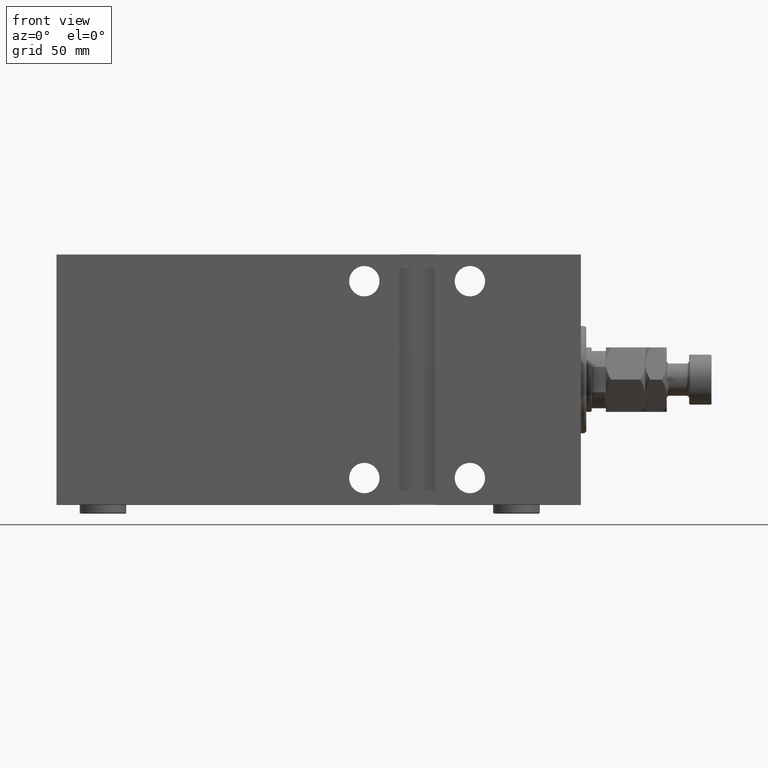
[diagram: clean part render]
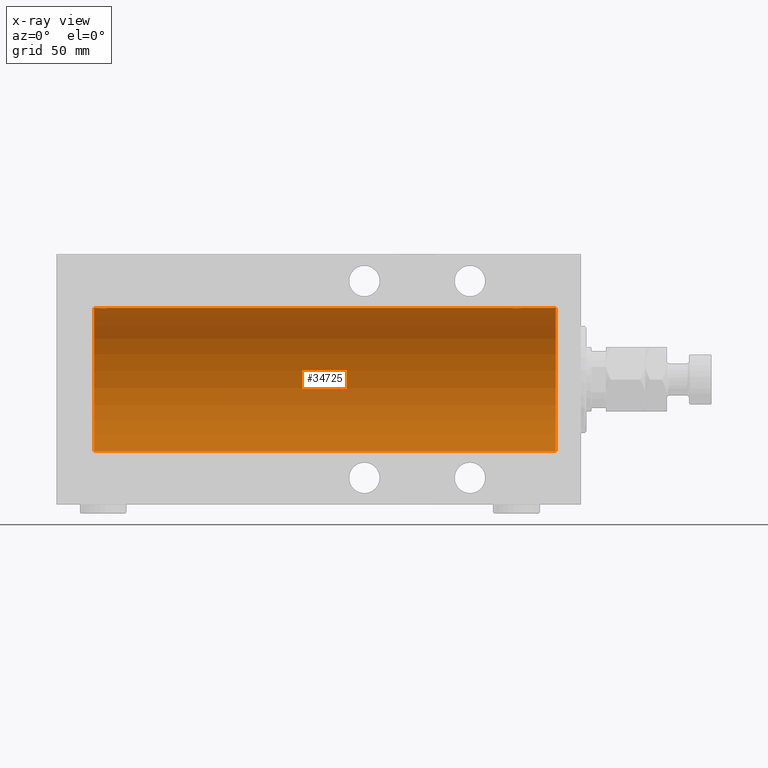
[diagram: x-ray — body ghosted, one internal face saturated and labeled with its STEP entity id]
A machine part, front view, then the same camera in x-ray: the body is ghosted and one INTERNAL B-rep face — a face not visible from any outside direction — is saturated and labeled: STEP entity #34725.
In plain terms, the highlighted cylindrical surface (partial cylindrical patch) has radius 40 mm, axis along (1, 0, -0).
Its self-contained STEP definition (entity closure, byte-faithful):
#127 = CARTESIAN_POINT ( 'NONE',  ( 33.61492399084646365, -1.830402106103518278, 39.95843610133494650 ) ) ;
#362 = CARTESIAN_POINT ( 'NONE',  ( 33.15334726986861824, -0.9668189122103377775, 39.98872185468385254 ) ) ;
#1238 = DIRECTION ( 'NONE',  ( 0.000000000000000000, 0.000000000000000000, 1.000000000000000000 ) ) ;
#1264 = CARTESIAN_POINT ( 'NONE',  ( 14.00000000000001243, 4.898587196589413026E-15, -40.00000000000000000 ) ) ;
#1785 = CARTESIAN_POINT ( 'NONE',  ( 267.9648932585351986, -2.847401743820455078, 39.89859630624608400 ) ) ;
#1987 = CARTESIAN_POINT ( 'NONE',  ( 38.69537007708436249, -1.331594428131636754, 39.97823692017208685 ) ) ;
#2236 = ORIENTED_EDGE ( 'NONE', *, *, #3599, .T. ) ;
#2241 = CARTESIAN_POINT ( 'NONE',  ( 264.0957482634864277, -0.7773146824711028025, 39.99291453282344833 ) ) ;
#2912 = CARTESIAN_POINT ( 'NONE',  ( 263.9999999999999432, -1.484439008399638965E-23, 40.00000000000000000 ) ) ;
#3599 = EDGE_CURVE ( 'NONE', #19220, #9148, #16643, .T. ) ;
#4024 = DIRECTION ( 'NONE',  ( -1.000000000000000000, -0.000000000000000000, -0.000000000000000000 ) ) ;
#4097 = CARTESIAN_POINT ( 'NONE',  ( 32.99999999999998579, -0.1957844162750551620, 40.00000000000000000 ) ) ;
#4730 = FACE_OUTER_BOUND ( 'NONE', #18650, .T. ) ;
#5015 = CARTESIAN_POINT ( 'NONE',  ( 37.82690184632410535, -2.387636253591812530, 39.92882473497732576 ) ) ;
#5279 = CARTESIAN_POINT ( 'NONE',  ( 265.4955691708652807, -2.602909538701760450, 39.91537030566259148 ) ) ;
#5481 = CARTESIAN_POINT ( 'NONE',  ( 39.00000000000000000, 1.790049141998953147E-15, 40.00000000000000000 ) ) ;
#5522 = CARTESIAN_POINT ( 'NONE',  ( 264.3956640008792078, -1.502129635934008167, 39.97212271185185983 ) ) ;
#5552 = CARTESIAN_POINT ( 'NONE',  ( 14.00000000000001243, 0.000000000000000000, 0.000000000000000000 ) ) ;
#5712 = CARTESIAN_POINT ( 'NONE',  ( 36.39109692509333627, -2.980812880639895468, 39.88879797994688658 ) ) ;
#5750 = CARTESIAN_POINT ( 'NONE',  ( 268.9813627951422177, -2.261082456166715104, 39.93628274425758917 ) ) ;
#7136 = DIRECTION ( 'NONE',  ( -1.000000000000000000, -0.000000000000000000, -0.000000000000000000 ) ) ;
#7574 = CARTESIAN_POINT ( 'NONE',  ( 33.73902383005258088, -1.981471132463167084, 39.95113231465138881 ) ) ;
#7803 = VECTOR ( 'NONE', #38650, 1000.000000000000000 ) ;
#7806 = CARTESIAN_POINT ( 'NONE',  ( 34.16955177177597847, -2.384933850258104560, 39.92898715513240404 ) ) ;
#7933 = CIRCLE ( 'NONE', #26543, 40.00000000000000000 ) ;
#8256 = CARTESIAN_POINT ( 'NONE',  ( 37.32853644746298016, -2.696981015661922054, 39.90904630908468675 ) ) ;
#8490 = CARTESIAN_POINT ( 'NONE',  ( 34.66775731134134730, -2.695129988695738721, 39.90917164320281074 ) ) ;
#8577 = CARTESIAN_POINT ( 'NONE',  ( 32.99999999999999289, -1.483413489222851649E-23, 40.00000000000000000 ) ) ;
#8598 = CARTESIAN_POINT ( 'NONE',  ( 272.0000000000000000, 4.898587196589413026E-15, -40.00000000000000000 ) ) ;
#8790 = DIRECTION ( 'NONE',  ( -1.000000000000000000, 0.000000000000000000, 0.000000000000000000 ) ) ;
#8878 = DIRECTION ( 'NONE',  ( 0.000000000000000000, 0.000000000000000000, 1.000000000000000000 ) ) ;
#9148 = VERTEX_POINT ( 'NONE', #18273 ) ;
#9222 = CARTESIAN_POINT ( 'NONE',  ( 267.7745567882632827, -2.904869018727210150, 39.89440043036668726 ) ) ;
#9296 = B_SPLINE_CURVE_WITH_KNOTS ( 'NONE', 3,
 ( #12941, #23213, #12700, #2241, #41145, #30657, #5522, #40909, #41836, #45332, #26940, #5279, #22972, #37192, #19481, #30894, #37668, #20170, #45114, #9222, #1785, #27177, #23446, #15989, #5750, #23897, #19949, #44878, #41383, #27405, #16672, #9456 ),
 .UNSPECIFIED., .F., .F.,
 ( 4, 2, 2, 2, 2, 2, 2, 2, 2, 2, 2, 2, 2, 2, 2, 4 ),
 ( 0.009382660366305065405, 0.009968941372944099474, 0.01055522237958313354, 0.01114150338622216761, 0.01172778439286120168, 0.01231406539950023575, 0.01290034640613926809, 0.01348662741277830215, 0.01407290841941733622, 0.01465918942605637029, 0.01524547043269540436, 0.01583175143933443843, 0.01641803244597347250, 0.01700431345261250657, 0.01759059445925154064, 0.01876315647252960878 ),
 .UNSPECIFIED. ) ;
#9329 = VERTEX_POINT ( 'NONE', #1264 ) ;
#9456 = CARTESIAN_POINT ( 'NONE',  ( 269.9999999999999432, 5.460299623278921719E-15, 40.00000000000000000 ) ) ;
#11228 = CARTESIAN_POINT ( 'NONE',  ( 272.0000000000000000, 0.000000000000000000, 40.00000000000000000 ) ) ;
#11466 = DIRECTION ( 'NONE',  ( -1.000000000000000000, -0.000000000000000000, -0.000000000000000000 ) ) ;
#12441 = CARTESIAN_POINT ( 'NONE',  ( 37.98136279514229585, -2.261082456166699561, 39.93628274425758917 ) ) ;
#12551 = EDGE_CURVE ( 'NONE', #19220, #35290, #18919, .T. ) ;
#12700 = CARTESIAN_POINT ( 'NONE',  ( 264.0189812288907660, -0.3904143323715981717, 39.99856256910221219 ) ) ;
#12941 = CARTESIAN_POINT ( 'NONE',  ( 263.9999999999999432, -1.484439008399638965E-23, 40.00000000000000000 ) ) ;
#13817 = VECTOR ( 'NONE', #7136, 1000.000000000000000 ) ;
#14789 = EDGE_CURVE ( 'NONE', #35511, #9148, #38437, .T. ) ;
#14794 = CARTESIAN_POINT ( 'NONE',  ( 33.01898122889073051, -0.3904143323715981717, 39.99856256910221219 ) ) ;
#15989 = CARTESIAN_POINT ( 'NONE',  ( 268.8269018463240627, -2.387636253591808977, 39.92882473497732576 ) ) ;
#16394 = CARTESIAN_POINT ( 'NONE',  ( 35.60477516546423260, -2.980272303779546661, 39.88883864243167920 ) ) ;
#16643 = B_SPLINE_CURVE_WITH_KNOTS ( 'NONE', 3,
 ( #18296, #4097, #14794, #32057, #362, #32525, #28800, #127, #7574, #25516, #7806, #36244, #8490, #40178, #44384, #16394, #44144, #29942, #5712, #26900, #37399, #8256, #22708, #5015, #12441, #40873, #33665, #30396, #1987, #19912, #19680, #5481 ),
 .UNSPECIFIED., .F., .F.,
 ( 4, 2, 2, 2, 2, 2, 2, 2, 2, 2, 2, 2, 2, 2, 2, 4 ),
 ( 0.009382660366305115712, 0.009968941372944153251, 0.01055522237958318905, 0.01114150338622222659, 0.01172778439286126240, 0.01231406539950029994, 0.01290034640613933747, 0.01348662741277837501, 0.01407290841941741255, 0.01465918942605645009, 0.01524547043269548589, 0.01583175143933452170, 0.01641803244597355924, 0.01700431345261259677, 0.01759059445925163084, 0.01876315647252970592 ),
 .UNSPECIFIED. ) ;
#16657 = ORIENTED_EDGE ( 'NONE', *, *, #17531, .T. ) ;
#16672 = CARTESIAN_POINT ( 'NONE',  ( 269.9999999999999432, -0.3964922677423690089, 40.00000000000000000 ) ) ;
#17531 = EDGE_CURVE ( 'NONE', #45238, #9329, #39503, .T. ) ;
#18273 = CARTESIAN_POINT ( 'NONE',  ( 39.00000000000000000, 1.790049141998953147E-15, 40.00000000000000000 ) ) ;
#18296 = CARTESIAN_POINT ( 'NONE',  ( 32.99999999999999289, -1.483413489222851649E-23, 40.00000000000000000 ) ) ;
#18525 = CARTESIAN_POINT ( 'NONE',  ( 272.0000000000000000, 4.898587196589413026E-15, -40.00000000000000000 ) ) ;
#18632 = VERTEX_POINT ( 'NONE', #18707 ) ;
#18650 = EDGE_LOOP ( 'NONE', ( #28284, #16657, #40606, #36432, #2236, #25599, #21586, #43595 ) ) ;
#18707 = CARTESIAN_POINT ( 'NONE',  ( 272.0000000000000000, 0.000000000000000000, 40.00000000000000000 ) ) ;
#18919 = LINE ( 'NONE', #11228, #41169 ) ;
#19220 = VERTEX_POINT ( 'NONE', #8577 ) ;
#19481 = CARTESIAN_POINT ( 'NONE',  ( 266.2213047658424898, -2.903766417398222721, 39.89448096967571189 ) ) ;
#19680 = CARTESIAN_POINT ( 'NONE',  ( 38.99999999999999289, -0.3964922677423693975, 39.99999999999998579 ) ) ;
#19912 = CARTESIAN_POINT ( 'NONE',  ( 38.92026174991647736, -0.7903958539027343688, 39.99381900068937767 ) ) ;
#19949 = CARTESIAN_POINT ( 'NONE',  ( 269.3825168091145770, -1.833695109615697927, 39.95828327492363741 ) ) ;
#20170 = CARTESIAN_POINT ( 'NONE',  ( 267.1956053107308549, -3.000157693440627771, 39.88732948994960026 ) ) ;
#21265 = LINE ( 'NONE', #35477, #34350 ) ;
#21586 = ORIENTED_EDGE ( 'NONE', *, *, #21631, .T. ) ;
#21631 = EDGE_CURVE ( 'NONE', #35511, #37939, #9296, .T. ) ;
#21749 = CYLINDRICAL_SURFACE ( 'NONE', #36575, 40.00000000000000000 ) ;
#22708 = CARTESIAN_POINT ( 'NONE',  ( 37.50088468404035069, -2.604941918888307395, 39.91523680494982784 ) ) ;
#22972 = CARTESIAN_POINT ( 'NONE',  ( 265.6677573113413473, -2.695129988695724066, 39.90917164320281785 ) ) ;
#23213 = CARTESIAN_POINT ( 'NONE',  ( 263.9999999999999432, -0.1957844162750548844, 39.99999999999999289 ) ) ;
#23446 = CARTESIAN_POINT ( 'NONE',  ( 268.5008846840403294, -2.604941918888304286, 39.91523680494982784 ) ) ;
#23897 = CARTESIAN_POINT ( 'NONE',  ( 269.2582967032049623, -1.984537326394321122, 39.95097977400578060 ) ) ;
#23927 = EDGE_CURVE ( 'NONE', #45238, #18632, #7933, .T. ) ;
#24900 = CARTESIAN_POINT ( 'NONE',  ( 14.00000000000001243, 0.000000000000000000, 40.00000000000000000 ) ) ;
#25516 = CARTESIAN_POINT ( 'NONE',  ( 34.01538552187719944, -2.258217541132902628, 39.93644519243653690 ) ) ;
#25599 = ORIENTED_EDGE ( 'NONE', *, *, #14789, .F. ) ;
#25921 = CARTESIAN_POINT ( 'NONE',  ( 272.0000000000000000, 0.000000000000000000, 0.000000000000000000 ) ) ;
#26143 = DIRECTION ( 'NONE',  ( -1.000000000000000000, -0.000000000000000000, -0.000000000000000000 ) ) ;
#26543 = AXIS2_PLACEMENT_3D ( 'NONE', #44305, #26603, #8878 ) ;
#26603 = DIRECTION ( 'NONE',  ( -1.000000000000000000, 0.000000000000000000, 0.000000000000000000 ) ) ;
#26900 = CARTESIAN_POINT ( 'NONE',  ( 36.77455678826340346, -2.904869018727219476, 39.89440043036668726 ) ) ;
#26940 = CARTESIAN_POINT ( 'NONE',  ( 265.1695517717759571, -2.384933850258116994, 39.92898715513240404 ) ) ;
#27003 = EDGE_CURVE ( 'NONE', #9329, #35290, #33401, .T. ) ;
#27177 = CARTESIAN_POINT ( 'NONE',  ( 268.3285364474628523, -2.696981015661924275, 39.90904630908467254 ) ) ;
#27405 = CARTESIAN_POINT ( 'NONE',  ( 269.9202617499163921, -0.7903958539027322594, 39.99381900068937057 ) ) ;
#27490 = CARTESIAN_POINT ( 'NONE',  ( 272.0000000000000000, 0.000000000000000000, 40.00000000000000000 ) ) ;
#28284 = ORIENTED_EDGE ( 'NONE', *, *, #23927, .F. ) ;
#28800 = CARTESIAN_POINT ( 'NONE',  ( 33.39566400087917231, -1.502129635934005503, 39.97212271185186694 ) ) ;
#29942 = CARTESIAN_POINT ( 'NONE',  ( 36.19560531073086196, -3.000157693440633988, 39.88732948994960026 ) ) ;
#30396 = CARTESIAN_POINT ( 'NONE',  ( 38.60188728128492386, -1.506322235190776349, 39.97196309111974699 ) ) ;
#30657 = CARTESIAN_POINT ( 'NONE',  ( 264.3027865941911045, -1.327859336864159800, 39.97836169682016561 ) ) ;
#30894 = CARTESIAN_POINT ( 'NONE',  ( 266.6047751654642752, -2.980272303779536447, 39.88883864243167920 ) ) ;
#30940 = EDGE_CURVE ( 'NONE', #18632, #37939, #21265, .T. ) ;
#32057 = CARTESIAN_POINT ( 'NONE',  ( 33.09574826348646326, -0.7773146824711036906, 39.99291453282343412 ) ) ;
#32525 = CARTESIAN_POINT ( 'NONE',  ( 33.30278659419118270, -1.327859336864148254, 39.97836169682017982 ) ) ;
#33401 = CIRCLE ( 'NONE', #37100, 40.00000000000000000 ) ;
#33665 = CARTESIAN_POINT ( 'NONE',  ( 38.38251680911464092, -1.833695109615710361, 39.95828327492363741 ) ) ;
#33973 = DIRECTION ( 'NONE',  ( 0.000000000000000000, 0.000000000000000000, 1.000000000000000000 ) ) ;
#34350 = VECTOR ( 'NONE', #4024, 1000.000000000000000 ) ;
#34725 = ADVANCED_FACE ( 'NONE', ( #4730 ), #21749, .F. ) ;
#35290 = VERTEX_POINT ( 'NONE', #24900 ) ;
#35477 = CARTESIAN_POINT ( 'NONE',  ( 272.0000000000000000, 0.000000000000000000, 40.00000000000000000 ) ) ;
#35511 = VERTEX_POINT ( 'NONE', #2912 ) ;
#36244 = CARTESIAN_POINT ( 'NONE',  ( 34.49556917086533048, -2.602909538701751568, 39.91537030566259148 ) ) ;
#36432 = ORIENTED_EDGE ( 'NONE', *, *, #12551, .F. ) ;
#36575 = AXIS2_PLACEMENT_3D ( 'NONE', #25921, #11466, #1238 ) ;
#37100 = AXIS2_PLACEMENT_3D ( 'NONE', #5552, #8790, #33973 ) ;
#37192 = CARTESIAN_POINT ( 'NONE',  ( 266.0306165810552557, -2.845855236045330194, 39.89870693240651178 ) ) ;
#37399 = CARTESIAN_POINT ( 'NONE',  ( 36.96489325853513463, -2.847401743820453746, 39.89859630624607689 ) ) ;
#37668 = CARTESIAN_POINT ( 'NONE',  ( 266.7995871398080112, -2.999840380514735561, 39.88735335562824957 ) ) ;
#37939 = VERTEX_POINT ( 'NONE', #39940 ) ;
#38437 = LINE ( 'NONE', #27490, #7803 ) ;
#38650 = DIRECTION ( 'NONE',  ( -1.000000000000000000, -0.000000000000000000, -0.000000000000000000 ) ) ;
#39503 = LINE ( 'NONE', #18525, #13817 ) ;
#39940 = CARTESIAN_POINT ( 'NONE',  ( 269.9999999999999432, 5.460299623278921719E-15, 40.00000000000000000 ) ) ;
#40178 = CARTESIAN_POINT ( 'NONE',  ( 35.03061658105536225, -2.845855236045343073, 39.89870693240651889 ) ) ;
#40606 = ORIENTED_EDGE ( 'NONE', *, *, #27003, .T. ) ;
#40873 = CARTESIAN_POINT ( 'NONE',  ( 38.25829670320502629, -1.984537326394299805, 39.95097977400577349 ) ) ;
#40909 = CARTESIAN_POINT ( 'NONE',  ( 264.6149239908464779, -1.830402106103519388, 39.95843610133493229 ) ) ;
#41145 = CARTESIAN_POINT ( 'NONE',  ( 264.1533472698686182, -0.9668189122103505451, 39.98872185468384544 ) ) ;
#41169 = VECTOR ( 'NONE', #26143, 1000.000000000000000 ) ;
#41383 = CARTESIAN_POINT ( 'NONE',  ( 269.6953700770843056, -1.331594428131634311, 39.97823692017208685 ) ) ;
#41836 = CARTESIAN_POINT ( 'NONE',  ( 264.7390238300525880, -1.981471132463177076, 39.95113231465138881 ) ) ;
#43595 = ORIENTED_EDGE ( 'NONE', *, *, #30940, .F. ) ;
#44144 = CARTESIAN_POINT ( 'NONE',  ( 35.79958713980801832, -2.999840380514740890, 39.88735335562824247 ) ) ;
#44305 = CARTESIAN_POINT ( 'NONE',  ( 272.0000000000000000, 0.000000000000000000, 0.000000000000000000 ) ) ;
#44384 = CARTESIAN_POINT ( 'NONE',  ( 35.22130476584258219, -2.903766417398234267, 39.89448096967571189 ) ) ;
#44878 = CARTESIAN_POINT ( 'NONE',  ( 269.6018872812848031, -1.506322235190763470, 39.97196309111975410 ) ) ;
#45114 = CARTESIAN_POINT ( 'NONE',  ( 267.3910969250932226, -2.980812880639887918, 39.88879797994688658 ) ) ;
#45238 = VERTEX_POINT ( 'NONE', #8598 ) ;
#45332 = CARTESIAN_POINT ( 'NONE',  ( 265.0153855218772492, -2.258217541132910622, 39.93644519243652979 ) ) ;